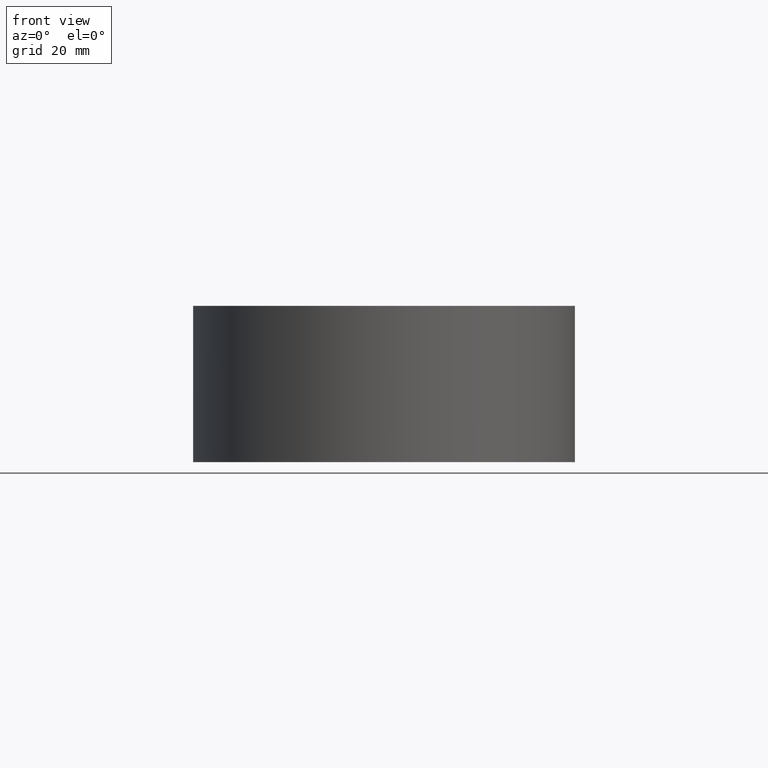
[diagram: clean part render]
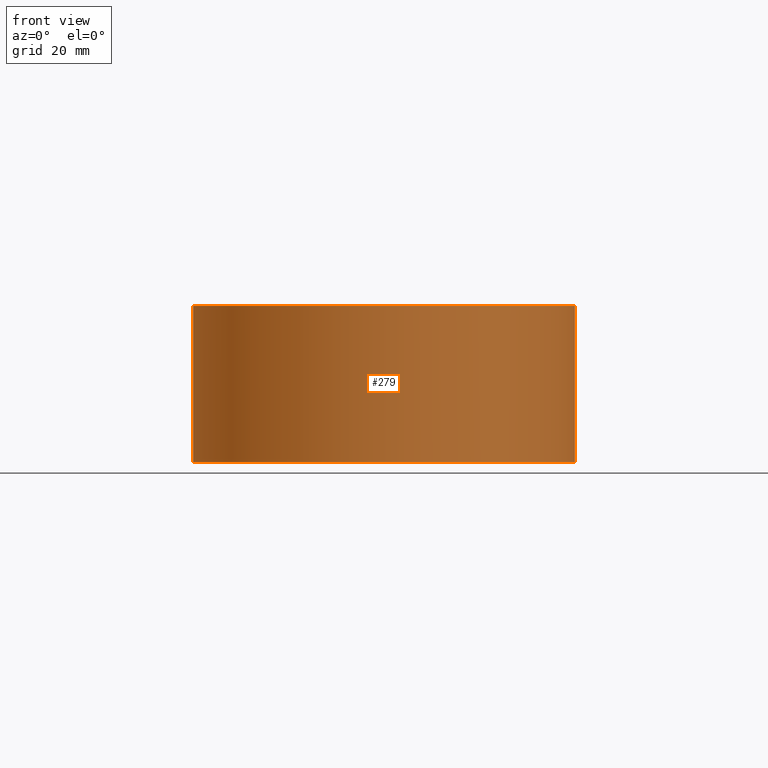
[diagram: same view with one face highlighted and labeled with its STEP entity id]
A machine part, front view. The second image highlights one B-rep face of the part: STEP entity #279.
In plain terms, the highlighted cylindrical surface (partial cylindrical patch) has radius 39.15 mm, axis along (0, 0, -1).
Its self-contained STEP definition (entity closure, byte-faithful):
#279 = ADVANCED_FACE( '', ( #391 ), #392, .T. );
#391 = FACE_OUTER_BOUND( '', #599, .T. );
#392 = CYLINDRICAL_SURFACE( '', #600, 39.1500000000000 );
#599 = EDGE_LOOP( '', ( #888, #889, #890, #891 ) );
#600 = AXIS2_PLACEMENT_3D( '', #892, #893, #894 );
#888 = ORIENTED_EDGE( '', *, *, #1487, .F. );
#889 = ORIENTED_EDGE( '', *, *, #1500, .F. );
#890 = ORIENTED_EDGE( '', *, *, #1459, .T. );
#891 = ORIENTED_EDGE( '', *, *, #1501, .T. );
#892 = CARTESIAN_POINT( '', ( 0.000000000000000, 0.000000000000000, -16.0000000000000 ) );
#893 = DIRECTION( '', ( 0.000000000000000, 0.000000000000000, -1.00000000000000 ) );
#894 = DIRECTION( '', ( -1.00000000000000, 6.06692130572647E-017, 0.000000000000000 ) );
#1459 = EDGE_CURVE( '', #1673, #1671, #1674, .T. );
#1487 = EDGE_CURVE( '', #1719, #1721, #1722, .T. );
#1500 = EDGE_CURVE( '', #1673, #1719, #1742, .T. );
#1501 = EDGE_CURVE( '', #1671, #1721, #1743, .T. );
#1671 = VERTEX_POINT( '', #2018 );
#1673 = VERTEX_POINT( '', #2020 );
#1674 = CIRCLE( '', #2021, 39.1500000000000 );
#1719 = VERTEX_POINT( '', #2081 );
#1721 = VERTEX_POINT( '', #2083 );
#1722 = CIRCLE( '', #2084, 39.1500000000000 );
#1742 = LINE( '', #2110, #2111 );
#1743 = LINE( '', #2112, #2113 );
#2018 = CARTESIAN_POINT( '', ( 6.33810709838107, 38.6335462831132, -16.0000000000000 ) );
#2020 = CARTESIAN_POINT( '', ( -6.33810709838105, 38.6335462831132, -16.0000000000000 ) );
#2021 = AXIS2_PLACEMENT_3D( '', #2573, #2574, #2575 );
#2081 = CARTESIAN_POINT( '', ( -6.33810709838107, 38.6335462831132, 16.0000000000000 ) );
#2083 = CARTESIAN_POINT( '', ( 6.33810709838107, 38.6335462831132, 16.0000000000000 ) );
#2084 = AXIS2_PLACEMENT_3D( '', #2627, #2628, #2629 );
#2110 = CARTESIAN_POINT( '', ( -6.33810709838107, 38.6335462831132, -16.0000000000000 ) );
#2111 = VECTOR( '', #2654, 1000.00000000000 );
#2112 = CARTESIAN_POINT( '', ( 6.33810709838107, 38.6335462831132, -16.0000000000000 ) );
#2113 = VECTOR( '', #2655, 1000.00000000000 );
#2573 = CARTESIAN_POINT( '', ( 0.000000000000000, 0.000000000000000, -16.0000000000000 ) );
#2574 = DIRECTION( '', ( 0.000000000000000, 0.000000000000000, 1.00000000000000 ) );
#2575 = DIRECTION( '', ( 1.00000000000000, 0.000000000000000, 0.000000000000000 ) );
#2627 = CARTESIAN_POINT( '', ( 0.000000000000000, 0.000000000000000, 16.0000000000000 ) );
#2628 = DIRECTION( '', ( 0.000000000000000, 0.000000000000000, 1.00000000000000 ) );
#2629 = DIRECTION( '', ( 1.00000000000000, 0.000000000000000, 0.000000000000000 ) );
#2654 = DIRECTION( '', ( 0.000000000000000, 0.000000000000000, 1.00000000000000 ) );
#2655 = DIRECTION( '', ( 0.000000000000000, 0.000000000000000, 1.00000000000000 ) );